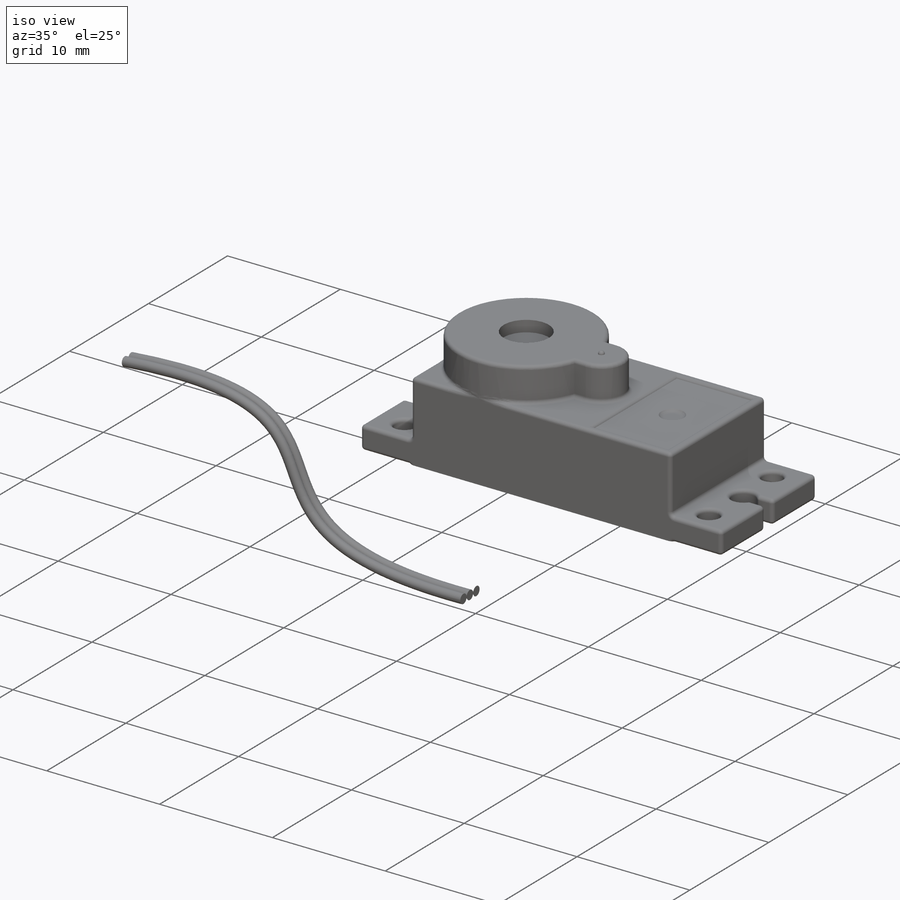
[diagram: iso view]
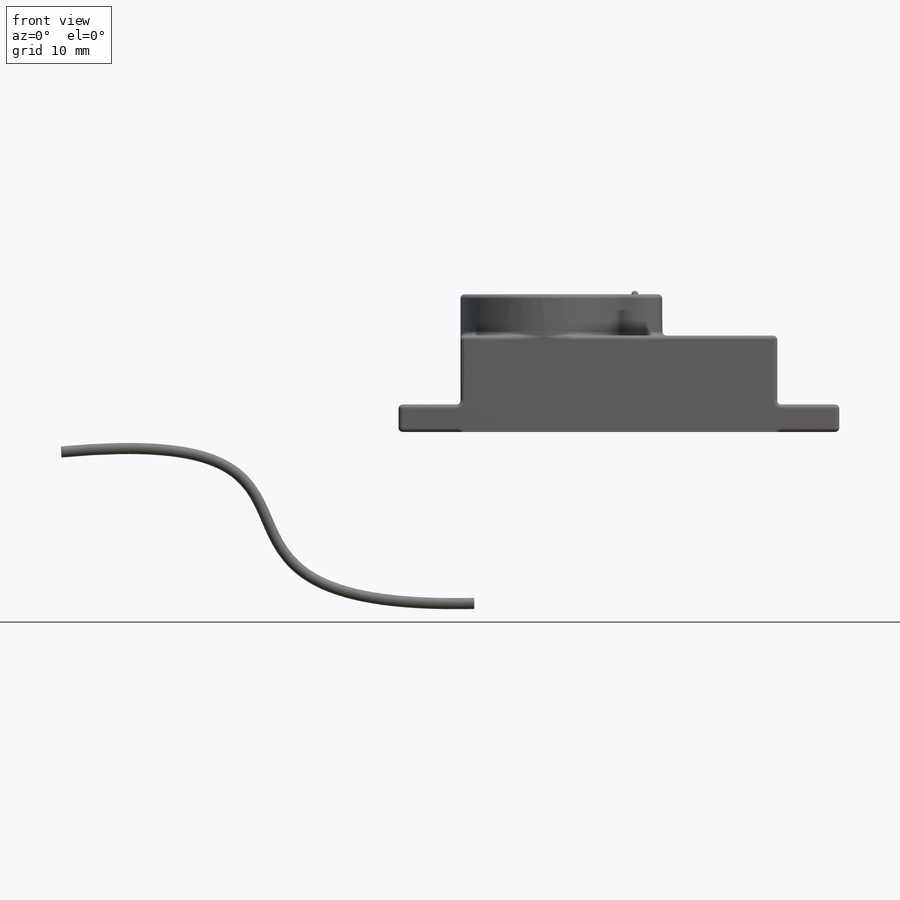
[diagram: front view]
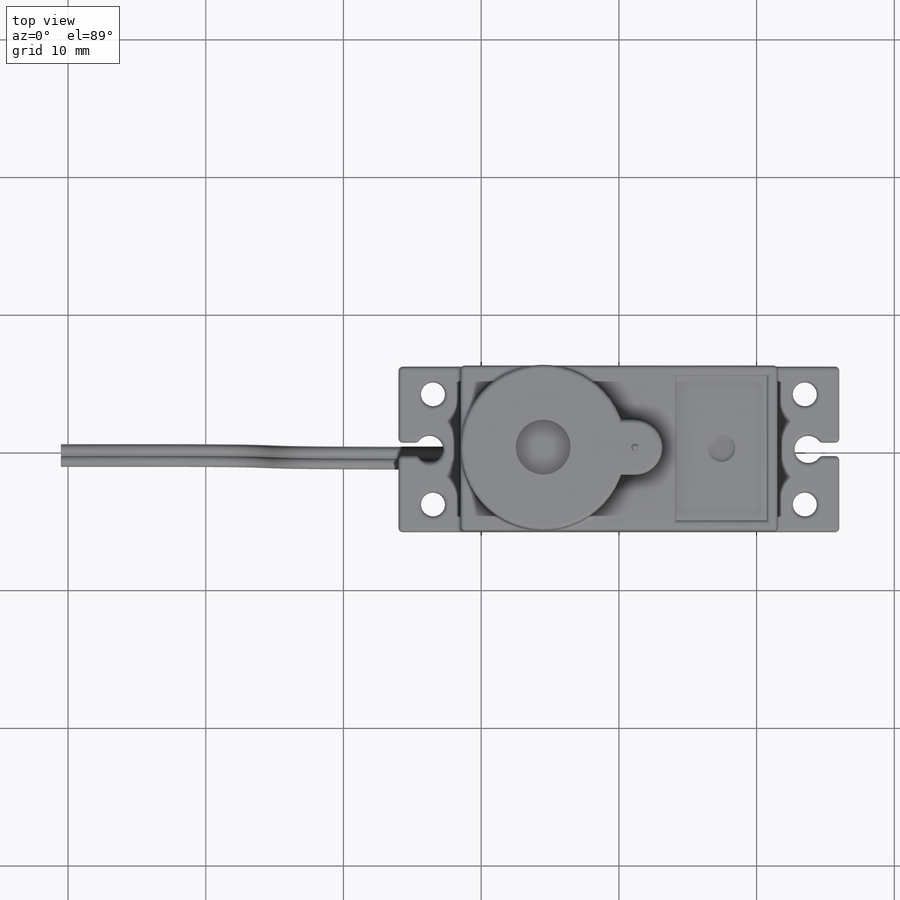
[diagram: top view]
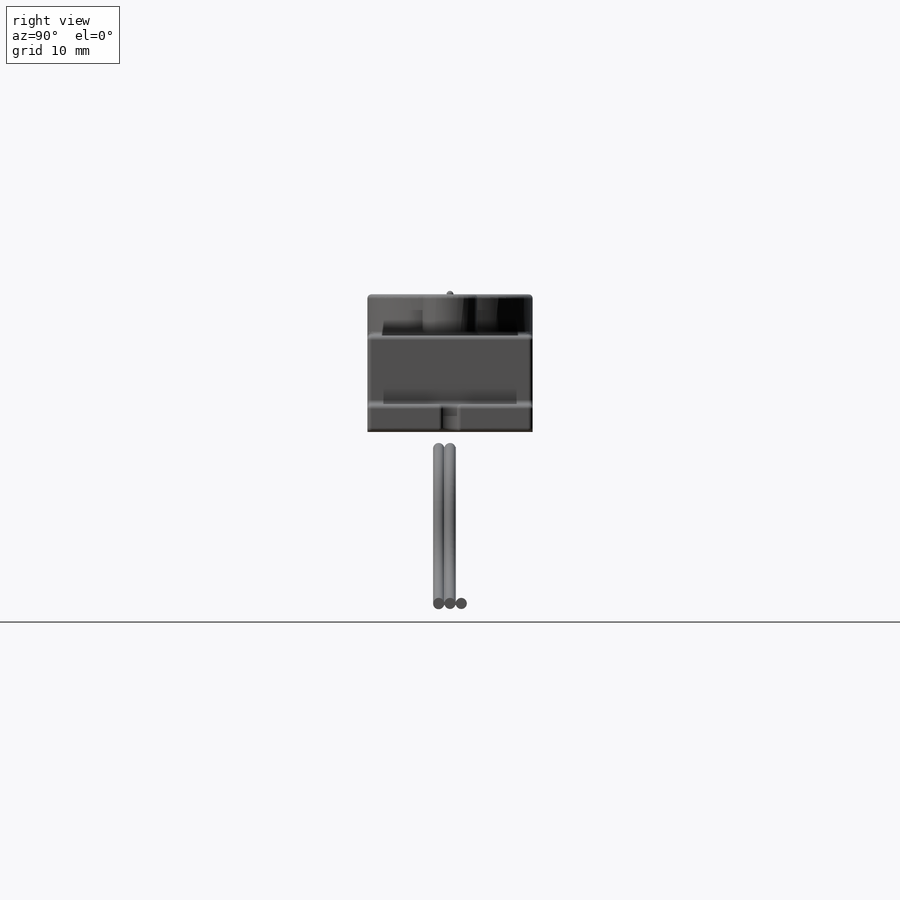
[diagram: right view]
SOLIDWORKS PART (.sldprt)
format: sldprt  version: not decoded by parser v0  size: 1,932,800 bytes
history: native  units: mm
features: sketch x19, cut_extrude x10, plane x5, extrude x5, fillet x2, material x1, mirror x1, pattern_circular x1, sweep x1, hole x1, thread x1 (+10 scaffold rows collapsed)
feature tree (57):
  scaffold x10  (default folders/planes/origin — collapsed)
  material  "Material <not specified>"
  plane  "Plano frontal"
  plane  "Plano superior"
  plane  "Plano direito"
  sketch  "Esboço1"  dims[D1=12.0mm D2=23.0mm]
  extrude  "Ressalto-extrusão1"  Depth=23mm
  sketch  "Esboço2"  dims[D1=16.0mm D2=2.0mm]
  extrude  "Ressalto-extrusão2"  Depth=4.5mm
  sketch  "Esboço3"  dims[D2=1.0mm D1=1.0mm]
  cut_extrude  "Corte-extrusão1"  [1 undecoded]
  mirror  "Espelhar1"
  sketch  "Esboço4"  dims[D1=2.0mm D2=1.0mm]
  extrude  "Ressalto-extrusão3"  Depth=3mm
  sketch  "Esboço5"  dims[D1=4.0mm]
  cut_extrude  "Corte-extrusão2"  Depth=1mm
  sketch  "Esboço6"
  extrude  "Ressalto-extrusão4"  Depth=4mm
  sketch  "Esboço7"  dims[D1=0.2mm]
  cut_extrude  "Corte-extrusão3"  Depth=2.8mm
  pattern_circular  "PadrãoCircular1"  Count=32 Angle=360deg
  sketch  "Esboço9"  dims[D1=0.5mm]
  extrude  "Ressalto-extrusão5"  Depth=0.25mm
  fillet  "Filete1"  Radius=0.1mm
  sketch  "Esboço10"  dims[c1.D3=1.75mm c1.D1=2.0mm c1.D2=2.0mm c2.D3=4.5mm]
  cut_extrude  "Corte-extrusão4"  [1 undecoded]
  sketch  "Esboço11"  dims[D3=1.0mm D1=1.0mm D2=1.0mm]
  cut_extrude  "Corte-extrusão5"  Depth=21mm
  sketch  "Esboço12"  dims[D1=0.75mm D2=0.75mm D3=0.75mm D4=1.0mm]
  cut_extrude  "Corte-extrusão6"  Depth=0.2mm
  sketch  "Esboço13"  dims[D1=2.0mm]
  cut_extrude  "Corte-extrusão7"  Depth=0.2mm
  sketch  "Esboço14"  dims[D1=0.2mm]
  cut_extrude  "Corte-extrusão8"  Depth=0.4mm Filete2=0deg Filete3=0deg Filete4=0deg
  sketch  "Esboço15"  dims[D1=0.9mm D2=2.5mm D3=4.0mm]
  cut_extrude  "Corte-extrusão9"  Depth=1mm
  sketch  "Esboço16"  dims[D1=0.405mm D2=0.25mm D3=0.05mm]
  sketch  "Esboço17"  dims[D1=16.0mm D2=14.0mm D3=8.0mm D4=3.0mm]
  plane  "Plano1"
  plane  "Plano2"
  fillet  "Dividir2"  [1 undecoded]
  sweep  "Varredura1"
  hole  "Furo roscado para conduíte de M2.2x0.451"  Diameter=1mm Depth=3mm
  sketch  "Esboço20"
  sketch  "Esboço18"  dims[hole-wizard template sketch: 34 standard entries collapsed; hole parameters kept: c6.Tap Drill Dia.=1.0mm c6.Tap Drill Depth=3.0mm c7.D3=~14.816244mm]
  thread  "Rosca de furo1"  Diameter=0.5mm  [1 undecoded]
  sketch  "Esboço21"  dims[D1=14.0mm D2=18.0mm]
  cut_extrude  "Corte-extrusão10"  Depth=0.01mm
decode coverage: 34 of 41 modeling features carry decoded parameters
note: ~ marks probable driven/reference dimensions
note: 4 parameter values undecoded
summary: no parameter record found for 3 features
note: suppression state not decoded; provenance and decode notes live in map.json
